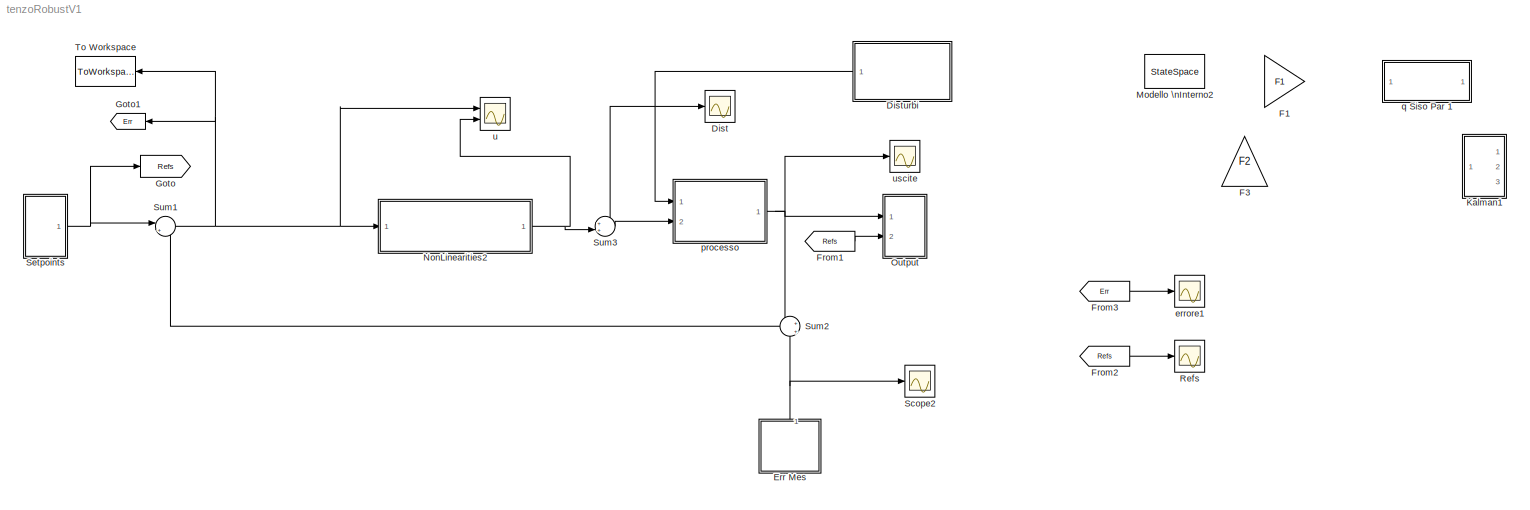
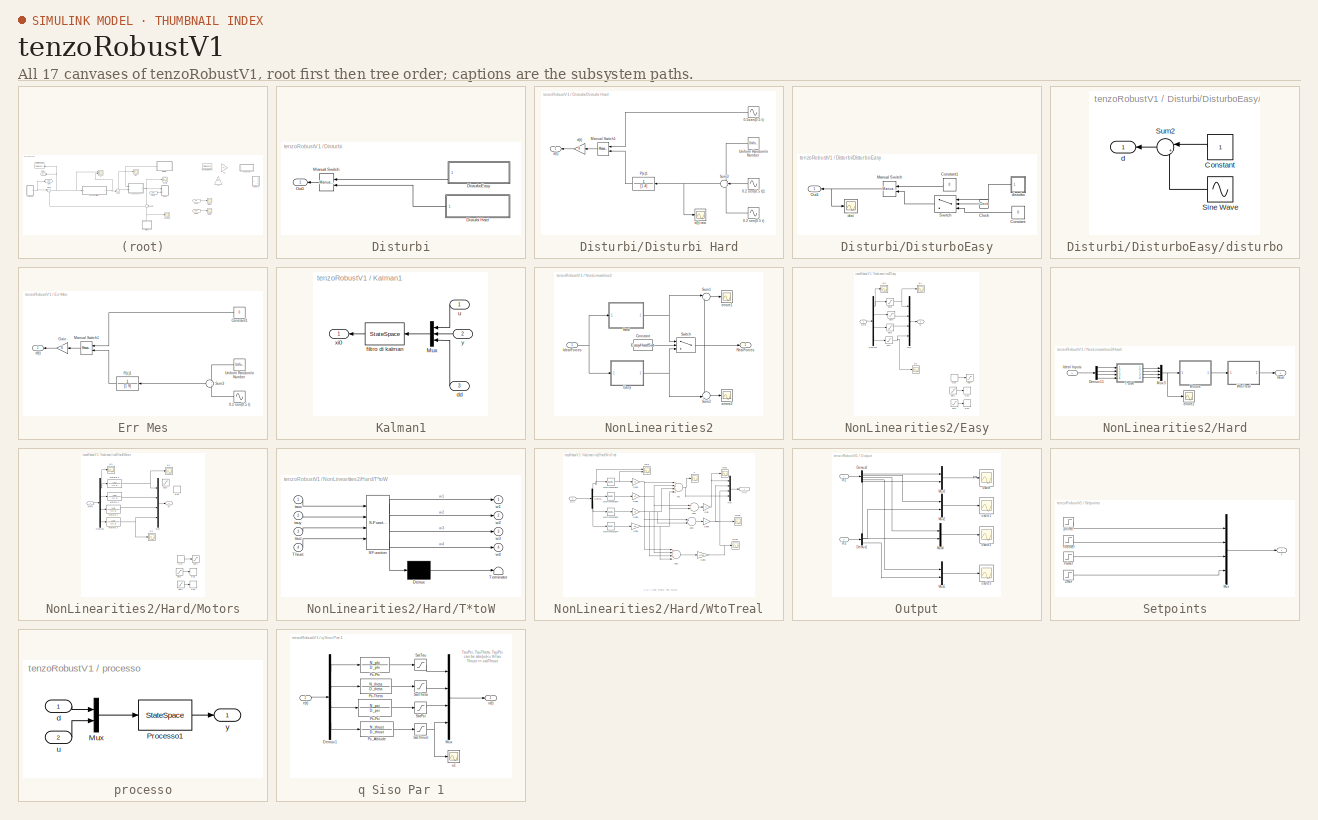
[diagram: thumbnail index - all 17 canvases of the model, root first then tree order]
MODEL tenzoRobustV1
KIND model
BLOCK [Scope] Dist
  DataFormat = StructureWithTime
  Floating = off
  LimitDataPoints = off
  NumInputPorts = 1
  Ports = [1]
  SID = 723
  SampleTime = 0
  SaveName = ScopeData22
  ShowLegends = off
  TimeRange = 15
  YMax = 0.09
  YMin = -0.1
  ZoomMode = yonly
BLOCK [SubSystem] Disturbi
  FunctionWithSeparateData = off
  MaskHideContents = off
  MinAlgLoopOccurrences = off
  Opaque = off
  Ports = [0, 1]
  PropExecContextOutsideSubsystem = off
  RTWSystemCode = Auto
  RequestExecContextInheritance = off
  SID = 721
BLOCK [SubSystem] Disturbi/Disturbi Hard
  FunctionWithSeparateData = off
  MaskHideContents = off
  MinAlgLoopOccurrences = off
  Opaque = off
  Ports = [0, 1]
  PropExecContextOutsideSubsystem = off
  RTWSystemCode = Auto
  RequestExecContextInheritance = off
  SID = 711
BLOCK [Outport] Disturbi/Disturbi Hard/  d(t)
  IconDisplay = Port number
  SID = 719
BLOCK [Sin] Disturbi/Disturbi Hard/0.2 sen(0.5 t)
  Amplitude = 0.2
  Frequency = 0.5
  Phase = 1
  Ports = [0, 1]
  SID = 712
  SampleTime = 0
BLOCK [Sin] Disturbi/Disturbi Hard/0.2 sen(0.5 t)1
  Amplitude = 0.1
  Frequency = 1.5
  Phase = 1.5
  Ports = [0, 1]
  SID = 739
  SampleTime = 0
BLOCK [Sin] Disturbi/Disturbi Hard/0.5sen(0.5 t)
  Amplitude = 0.5
  Frequency = 0.5
  Phase = 1
  Ports = [0, 1]
  SID = 713
  SampleTime = 0
BLOCK [Reference] Disturbi/Disturbi Hard/Manual Switch1  REF=simulink/Signal\nRouting/Manual Switch
  Ports = [2, 1]
  SID = 715
  SourceBlock = simulink/Signal\nRouting/Manual Switch
  SourceType = Manual Switch
  action = 0
  sw = 0
  varsize = off
BLOCK [TransferFcn] Disturbi/Disturbi Hard/P(s)1
  Denominator = [1 4]
  Numerator = 1
  SID = 716
BLOCK [Sum] Disturbi/Disturbi Hard/Sum3
  IconShape = round
  InputSameDT = off
  Inputs = +++
  OutDataTypeStr = Inherit: Inherit via internal rule
  Ports = [3, 1]
  SID = 717
  SaturateOnIntegerOverflow = off
BLOCK [UniformRandomNumber] Disturbi/Disturbi Hard/Uniform Random\nNumber
  Maximum = 0.5
  Minimum = -0.5
  SID = 718
  SampleTime = 0.1
BLOCK [Gain] Disturbi/Disturbi Hard/d(t)
  OutDataTypeStr = Inherit: Inherit via internal rule
  ParamDataTypeStr = Inherit: Inherit via internal rule
  SID = 714
  SaturateOnIntegerOverflow = off
BLOCK [Scope] Disturbi/Disturbi Hard/d(t) raw
  DataFormat = StructureWithTime
  Floating = off
  LimitDataPoints = off
  NumInputPorts = 1
  Ports = [1]
  SID = 740
  SampleTime = 0
  SaveName = ScopeData24
  ShowLegends = off
  TimeRange = 15
  YMax = 0.05
  YMin = -0.65
  ZoomMode = yonly
BLOCK [SubSystem] Disturbi/DisturboEasy
  FunctionWithSeparateData = off
  MaskHideContents = off
  MinAlgLoopOccurrences = off
  Opaque = off
  Ports = [0, 1]
  PropExecContextOutsideSubsystem = off
  RTWSystemCode = Auto
  RequestExecContextInheritance = off
  SID = 709
BLOCK [Clock] Disturbi/DisturboEasy/Clock
  SID = 104
BLOCK [Constant] Disturbi/DisturboEasy/Constant
  SID = 106
  Value = 0
BLOCK [Constant] Disturbi/DisturboEasy/Constant1
  SID = 148
  Value = 0
BLOCK [Reference] Disturbi/DisturboEasy/Manual Switch  REF=simulink/Signal\nRouting/Manual Switch
  Ports = [2, 1]
  SID = 149
  SourceBlock = simulink/Signal\nRouting/Manual Switch
  SourceType = Manual Switch
  action = 0
  sw = 1
  varsize = off
BLOCK [Outport] Disturbi/DisturboEasy/Out1
  IconDisplay = Port number
  SID = 710
BLOCK [Switch] Disturbi/DisturboEasy/Switch
  InputSameDT = off
  SID = 103
  SaturateOnIntegerOverflow = off
  Threshold = 5
BLOCK [Scope] Disturbi/DisturboEasy/dist
  DataFormat = StructureWithTime
  Floating = off
  LimitDataPoints = off
  NumInputPorts = 1
  Ports = [1]
  SID = 54
  SampleTime = 0
  SaveName = ScopeData5
  ShowLegends = off
BLOCK [SubSystem] Disturbi/DisturboEasy/disturbo
  FunctionWithSeparateData = off
  MaskHideContents = off
  MinAlgLoopOccurrences = off
  Opaque = off
  Ports = [0, 1]
  PropExecContextOutsideSubsystem = off
  RTWSystemCode = Auto
  RequestExecContextInheritance = off
  SID = 50
BLOCK [Constant] Disturbi/DisturboEasy/disturbo/Constant
  SID = 47
BLOCK [Sin] Disturbi/DisturboEasy/disturbo/Sine Wave
  Amplitude = 0.5
  Frequency = omega
  Ports = [0, 1]
  SID = 48
  SampleTime = 0
BLOCK [Sum] Disturbi/DisturboEasy/disturbo/Sum2
  IconShape = round
  InputSameDT = off
  Inputs = |++
  OutDataTypeStr = Inherit: Inherit via internal rule
  Ports = [2, 1]
  SID = 49
  SaturateOnIntegerOverflow = off
BLOCK [Outport] Disturbi/DisturboEasy/disturbo/d
  IconDisplay = Port number
  SID = 51
BLOCK [Reference] Disturbi/Manual Switch  REF=simulink/Signal\nRouting/Manual Switch
  Ports = [2, 1]
  SID = 720
  SourceBlock = simulink/Signal\nRouting/Manual Switch
  SourceType = Manual Switch
  action = 0
  sw = 1
  varsize = off
BLOCK [Outport] Disturbi/Out1
  IconDisplay = Port number
  SID = 722
BLOCK [SubSystem] Err Mes
  FunctionWithSeparateData = off
  MaskHideContents = off
  MinAlgLoopOccurrences = off
  Opaque = off
  Ports = [0, 1]
  PropExecContextOutsideSubsystem = off
  RTWSystemCode = Auto
  RequestExecContextInheritance = off
  SID = 685
BLOCK [Outport] Err Mes/  d(t)
  IconDisplay = Port number
  SID = 693
BLOCK [Sin] Err Mes/0.2 sen(0.5 t)
  Amplitude = 0.02
  Frequency = 50
  Phase = 1
  Ports = [0, 1]
  SID = 687
  SampleTime = 0
BLOCK [Constant] Err Mes/Constant1
  SID = 743
  Value = 0
BLOCK [Gain] Err Mes/Gain
  OutDataTypeStr = Inherit: Inherit via internal rule
  ParamDataTypeStr = Inherit: Inherit via internal rule
  SID = 688
  SaturateOnIntegerOverflow = off
BLOCK [Reference] Err Mes/Manual Switch1  REF=simulink/Signal\nRouting/Manual Switch
  Ports = [2, 1]
  SID = 689
  SourceBlock = simulink/Signal\nRouting/Manual Switch
  SourceType = Manual Switch
  action = 0
  sw = 1
  varsize = off
BLOCK [TransferFcn] Err Mes/P(s)1
  Denominator = [1 9]
  Numerator = 1
  SID = 690
BLOCK [Sum] Err Mes/Sum3
  IconShape = round
  InputSameDT = off
  OutDataTypeStr = Inherit: Inherit via internal rule
  Ports = [2, 1]
  SID = 691
  SaturateOnIntegerOverflow = off
BLOCK [UniformRandomNumber] Err Mes/Uniform Random\nNumber
  Maximum = 0.05
  Minimum = -0.05
  SID = 692
  SampleTime = 0.1
BLOCK [Gain] F1
  Gain = F1
  Multiplication = Matrix(K*u) (u vector)
  OutDataTypeStr = Inherit: Inherit via internal rule
  ParamDataTypeStr = Inherit: Inherit via internal rule
  SID = 191
  SaturateOnIntegerOverflow = off
BLOCK [Gain] F3
  Gain = F2
  Multiplication = Matrix(K*u) (u vector)
  OutDataTypeStr = Inherit: Inherit via internal rule
  ParamDataTypeStr = Inherit: Inherit via internal rule
  SID = 134
  SaturateOnIntegerOverflow = off
BLOCK [From] From1
  GotoTag = Refs
  SID = 69
BLOCK [From] From2
  GotoTag = Refs
  SID = 84
BLOCK [From] From3
  GotoTag = Err
  SID = 85
BLOCK [Goto] Goto
  GotoTag = Refs
  SID = 68
BLOCK [Goto] Goto1
  GotoTag = Err
  SID = 87
BLOCK [SubSystem] Kalman1
  FunctionWithSeparateData = off
  MaskHideContents = off
  MinAlgLoopOccurrences = off
  Opaque = off
  Ports = [3, 1]
  PropExecContextOutsideSubsystem = off
  RTWSystemCode = Auto
  RequestExecContextInheritance = off
  SID = 138
BLOCK [Mux] Kalman1/Mux
  DisplayOption = bar
  Inputs = [4 4 1]
  Ports = [3, 1]
  SID = 142
BLOCK [Inport] Kalman1/dd
  IconDisplay = Port number
  Port = 3
  SID = 141
BLOCK [StateSpace] Kalman1/filtro di kalman
  A = Aoss
  B = Boss
  C = Coss
  D = Doss
  SID = 143
BLOCK [Inport] Kalman1/u
  IconDisplay = Port number
  SID = 139
BLOCK [Outport] Kalman1/xi0
  IconDisplay = Port number
  SID = 144
BLOCK [Inport] Kalman1/y
  IconDisplay = Port number
  Port = 2
  SID = 140
BLOCK [StateSpace] Modello \nInterno2
  A = AMI
  B = BMI
  C = CMI
  D = DMI
  SID = 192
BLOCK [SubSystem] NonLinearities2
  FunctionWithSeparateData = off
  MaskHideContents = off
  MinAlgLoopOccurrences = off
  Opaque = off
  Ports = [1, 1]
  PropExecContextOutsideSubsystem = off
  RTWSystemCode = Auto
  RequestExecContextInheritance = off
  SID = 604
BLOCK [Constant] NonLinearities2/Constant
  SID = 606
  Value = EasyHardSat
BLOCK [SubSystem] NonLinearities2/Easy
  FunctionWithSeparateData = off
  MaskHideContents = off
  MinAlgLoopOccurrences = off
  Opaque = off
  Ports = [1, 1]
  PropExecContextOutsideSubsystem = off
  RTWSystemCode = Auto
  RequestExecContextInheritance = off
  SID = 607
BLOCK [DeadZone] NonLinearities2/Easy/DZ2
  LowerValue = 0
  SID = 609
  UpperValue = deadMotorsZone
BLOCK [DeadZone] NonLinearities2/Easy/DZ3
  LowerValue = 0
  SID = 610
  UpperValue = deadMotorsZone
BLOCK [DeadZone] NonLinearities2/Easy/DZ4
  LowerValue = 0
  SID = 611
  UpperValue = deadMotorsZone
BLOCK [Demux] NonLinearities2/Easy/Demux5
  DisplayOption = bar
  Ports = [1, 4]
  SID = 612
BLOCK [Mux] NonLinearities2/Easy/Mux
  DisplayOption = bar
  Ports = [4, 1]
  SID = 613
BLOCK [Saturate] NonLinearities2/Easy/Sat1
  InputPortMap = u0
  LowerLimit = 0
  Ports = [1, 1]
  SID = 614
  UpperLimit = satMaxRPM
BLOCK [Saturate] NonLinearities2/Easy/Sat2
  InputPortMap = u0
  LowerLimit = 0
  Ports = [1, 1]
  SID = 615
  UpperLimit = satMaxRPM
BLOCK [Saturate] NonLinearities2/Easy/Sat3
  InputPortMap = u0
  LowerLimit = satMenoW
  Ports = [1, 1]
  SID = 616
  UpperLimit = satW
BLOCK [Saturate] NonLinearities2/Easy/Sat4
  InputPortMap = u0
  LowerLimit = 0
  Ports = [1, 1]
  SID = 617
  UpperLimit = satMaxRPM
BLOCK [Saturate] NonLinearities2/Easy/Sat5
  InputPortMap = u0
  LowerLimit = satMenoW
  Ports = [1, 1]
  SID = 744
  UpperLimit = satW
BLOCK [Saturate] NonLinearities2/Easy/Sat6
  InputPortMap = u0
  LowerLimit = satMenoW
  Ports = [1, 1]
  SID = 745
  UpperLimit = satW
BLOCK [Saturate] NonLinearities2/Easy/Sat7
  InputPortMap = u0
  LowerLimit = satMenoW
  Ports = [1, 1]
  SID = 746
  UpperLimit = satW
BLOCK [Outport] NonLinearities2/Easy/w
  IconDisplay = Port number
  SID = 624
BLOCK [Scope] NonLinearities2/Easy/w1
  DataFormat = StructureWithTime
  Floating = off
  NumInputPorts = 1
  Ports = [1]
  SID = 621
  SampleTime = 0
  SaveName = ScopeData15
  ShowLegends = off
  YMax = 2.25e+42
  YMin = -1.5e+42
BLOCK [Scope] NonLinearities2/Easy/w2
  DataFormat = StructureWithTime
  Floating = off
  NumInputPorts = 1
  Ports = [1]
  SID = 622
  SampleTime = 0
  SaveName = ScopeData10
  ShowLegends = off
  YMax = 5e+50
  YMin = -8e+50
BLOCK [Scope] NonLinearities2/Easy/w3
  DataFormat = StructureWithTime
  Floating = off
  NumInputPorts = 1
  Ports = [1]
  SID = 623
  SampleTime = 0
  SaveName = ScopeData16
  ShowLegends = off
  YMax = 999.705
  YMin = 904.495
BLOCK [Inport] NonLinearities2/Easy/wRif
  IconDisplay = Port number
  SID = 608
BLOCK [SubSystem] NonLinearities2/Hard
  FunctionWithSeparateData = off
  MaskHideContents = off
  MinAlgLoopOccurrences = off
  Opaque = off
  Ports = [1, 1]
  PropExecContextOutsideSubsystem = off
  RTWSystemCode = Auto
  RequestExecContextInheritance = off
  SID = 625
BLOCK [Demux] NonLinearities2/Hard/Demux11
  DisplayOption = bar
  Ports = [1, 4]
  SID = 627
BLOCK [Inport] NonLinearities2/Hard/Ideal Inputs
  IconDisplay = Port number
  SID = 626
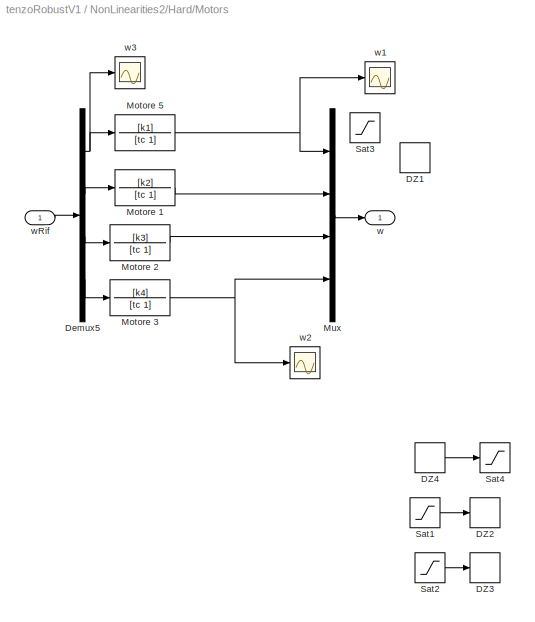
BLOCK [SubSystem] NonLinearities2/Hard/Motors
  FunctionWithSeparateData = off
  MaskHideContents = off
  MinAlgLoopOccurrences = off
  Opaque = off
  Ports = [1, 1]
  PropExecContextOutsideSubsystem = off
  RTWSystemCode = Auto
  RequestExecContextInheritance = off
  SID = 628
BLOCK [DeadZone] NonLinearities2/Hard/Motors/DZ1
  LowerValue = 0
  SID = 630
  UpperValue = deadMotorsZone
BLOCK [DeadZone] NonLinearities2/Hard/Motors/DZ2
  LowerValue = 0
  SID = 631
  UpperValue = deadMotorsZone
BLOCK [DeadZone] NonLinearities2/Hard/Motors/DZ3
  LowerValue = 0
  SID = 632
  UpperValue = deadMotorsZone
BLOCK [DeadZone] NonLinearities2/Hard/Motors/DZ4
  LowerValue = 0
  SID = 633
  UpperValue = deadMotorsZone
BLOCK [Demux] NonLinearities2/Hard/Motors/Demux5
  DisplayOption = bar
  Ports = [1, 4]
  SID = 634
BLOCK [TransferFcn] NonLinearities2/Hard/Motors/Motore 1
  Denominator = [tc 1]
  Numerator = [k2]
  SID = 635
BLOCK [TransferFcn] NonLinearities2/Hard/Motors/Motore 2
  Denominator = [tc 1]
  Numerator = [k3]
  SID = 636
BLOCK [TransferFcn] NonLinearities2/Hard/Motors/Motore 3
  Denominator = [tc 1]
  Numerator = [k4]
  SID = 637
BLOCK [TransferFcn] NonLinearities2/Hard/Motors/Motore 5
  Denominator = [tc 1]
  Numerator = [k1]
  SID = 638
BLOCK [Mux] NonLinearities2/Hard/Motors/Mux
  DisplayOption = bar
  Ports = [4, 1]
  SID = 639
BLOCK [Saturate] NonLinearities2/Hard/Motors/Sat1
  InputPortMap = u0
  LowerLimit = 0
  Ports = [1, 1]
  SID = 640
  UpperLimit = satMaxRPM
BLOCK [Saturate] NonLinearities2/Hard/Motors/Sat2
  InputPortMap = u0
  LowerLimit = 0
  Ports = [1, 1]
  SID = 641
  UpperLimit = satMaxRPM
BLOCK [Saturate] NonLinearities2/Hard/Motors/Sat3
  InputPortMap = u0
  LowerLimit = 0
  Ports = [1, 1]
  SID = 642
  UpperLimit = satMaxRPM
BLOCK [Saturate] NonLinearities2/Hard/Motors/Sat4
  InputPortMap = u0
  LowerLimit = 0
  Ports = [1, 1]
  SID = 643
  UpperLimit = satMaxRPM
BLOCK [Outport] NonLinearities2/Hard/Motors/w
  IconDisplay = Port number
  SID = 647
BLOCK [Scope] NonLinearities2/Hard/Motors/w1
  DataFormat = StructureWithTime
  Floating = off
  NumInputPorts = 1
  Ports = [1]
  SID = 644
  SampleTime = 0
  SaveName = ScopeData15
  ShowLegends = off
  YMax = 2.25e+42
  YMin = -1.5e+42
BLOCK [Scope] NonLinearities2/Hard/Motors/w2
  DataFormat = StructureWithTime
  Floating = off
  NumInputPorts = 1
  Ports = [1]
  SID = 645
  SampleTime = 0
  SaveName = ScopeData10
  ShowLegends = off
  YMax = 5e+50
  YMin = -8e+50
BLOCK [Scope] NonLinearities2/Hard/Motors/w3
  DataFormat = StructureWithTime
  Floating = off
  NumInputPorts = 1
  Ports = [1]
  SID = 646
  SampleTime = 0
  SaveName = ScopeData16
  ShowLegends = off
  YMax = 999.705
  YMin = 904.495
BLOCK [Inport] NonLinearities2/Hard/Motors/wRif
  IconDisplay = Port number
  SID = 629
BLOCK [Mux] NonLinearities2/Hard/Mux3
  DisplayOption = bar
  Ports = [4, 1]
  SID = 648
BLOCK [Outport] NonLinearities2/Hard/Real
  IconDisplay = Port number
  SID = 676
BLOCK [SubSystem] NonLinearities2/Hard/T*toW
  ErrorFcn = Stateflow.Translate.translate
  FunctionWithSeparateData = off
  MaskDisplay = bgColor = Simulink.Root.ColorString2Rgb(get_param(gcbh, 'BackgroundColor')); image(imread('private/eml_membrane_16.png','png','BackgroundColor',bgColor(1:3)),'center'); disp([10 10 'mixer']);
  MaskHideContents = off
  MaskIconFrame = on
  MaskIconOpaque = on
  MaskIconRotate = none
  MaskIconUnits = normalized
  MaskPortRotate = default
  MaskSelfModifiable = on
  MinAlgLoopOccurrences = off
  Opaque = off
  PermitHierarchicalResolution = ExplicitOnly
  Ports = [4, 4]
  PropExecContextOutsideSubsystem = off
  RTWSystemCode = Auto
  RequestExecContextInheritance = off
  SFBlockType = MATLAB Function
  SID = 649
  TreatAsAtomicUnit = on
BLOCK [Demux] NonLinearities2/Hard/T*toW/ Demux 
  Outputs = 1
  Ports = [1, 1]
  SID = 649::30
BLOCK [S-Function] NonLinearities2/Hard/T*toW/ SFunction 
  EnableBusSupport = on
  FunctionName = sf_sfun
  PortCounts = [4 5]
  Ports = [4, 5]
  SID = 649::29
  Tag = Stateflow S-Function tenzoRobustV1 2
BLOCK [Terminator] NonLinearities2/Hard/T*toW/ Terminator 
  SID = 649::31
BLOCK [Inport] NonLinearities2/Hard/T*toW/Thrust
  IconDisplay = Port number
  Port = 4
  SID = 649::1
BLOCK [Inport] NonLinearities2/Hard/T*toW/taux
  IconDisplay = Port number
  SID = 649::23
BLOCK [Inport] NonLinearities2/Hard/T*toW/tauy
  IconDisplay = Port number
  Port = 2
  SID = 649::24
BLOCK [Inport] NonLinearities2/Hard/T*toW/tauz
  IconDisplay = Port number
  Port = 3
  SID = 649::25
BLOCK [Outport] NonLinearities2/Hard/T*toW/w1
  IconDisplay = Port number
  SID = 649::5
BLOCK [Outport] NonLinearities2/Hard/T*toW/w2
  IconDisplay = Port number
  Port = 2
  SID = 649::26
BLOCK [Outport] NonLinearities2/Hard/T*toW/w3
  IconDisplay = Port number
  Port = 3
  SID = 649::27
BLOCK [Outport] NonLinearities2/Hard/T*toW/w4
  IconDisplay = Port number
  Port = 4
  SID = 649::28
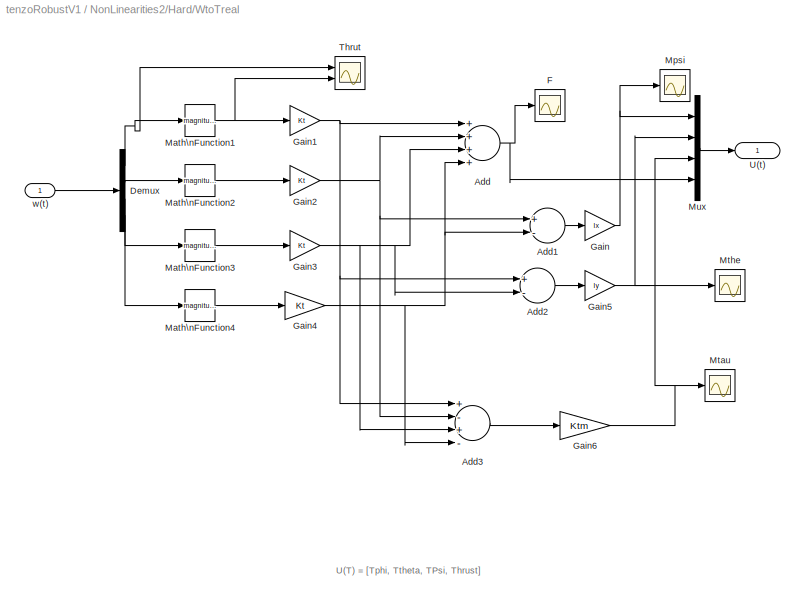
BLOCK [SubSystem] NonLinearities2/Hard/WtoTreal
  FunctionWithSeparateData = off
  MaskHideContents = off
  MinAlgLoopOccurrences = off
  Opaque = off
  Ports = [1, 1]
  PropExecContextOutsideSubsystem = off
  RTWSystemCode = Auto
  RequestExecContextInheritance = off
  SID = 650
BLOCK [Sum] NonLinearities2/Hard/WtoTreal/Add
  InputSameDT = off
  Inputs = ++++
  OutDataTypeStr = Inherit: Inherit via internal rule
  Ports = [4, 1]
  SID = 652
  SaturateOnIntegerOverflow = off
BLOCK [Sum] NonLinearities2/Hard/WtoTreal/Add1
  InputSameDT = off
  Inputs = +-
  OutDataTypeStr = Inherit: Inherit via internal rule
  Ports = [2, 1]
  SID = 653
  SaturateOnIntegerOverflow = off
BLOCK [Sum] NonLinearities2/Hard/WtoTreal/Add2
  InputSameDT = off
  Inputs = +-
  OutDataTypeStr = Inherit: Inherit via internal rule
  Ports = [2, 1]
  SID = 654
  SaturateOnIntegerOverflow = off
BLOCK [Sum] NonLinearities2/Hard/WtoTreal/Add3
  InputSameDT = off
  Inputs = +-+-
  OutDataTypeStr = Inherit: Inherit via internal rule
  Ports = [4, 1]
  SID = 655
  SaturateOnIntegerOverflow = off
BLOCK [Demux] NonLinearities2/Hard/WtoTreal/Demux
  DisplayOption = bar
  Ports = [1, 4]
  SID = 656
BLOCK [Scope] NonLinearities2/Hard/WtoTreal/F
  DataFormat = StructureWithTime
  Floating = off
  NumInputPorts = 1
  Ports = [1]
  SID = 657
  SampleTime = 0
  SaveName = ScopeData17
  ShowLegends = off
  ZoomMode = yonly
BLOCK [Gain] NonLinearities2/Hard/WtoTreal/Gain
  Gain = lx
  OutDataTypeStr = Inherit: Inherit via internal rule
  ParamDataTypeStr = Inherit: Inherit via internal rule
  SID = 658
  SaturateOnIntegerOverflow = off
BLOCK [Gain] NonLinearities2/Hard/WtoTreal/Gain1
  Gain = Kt
  OutDataTypeStr = Inherit: Inherit via internal rule
  ParamDataTypeStr = Inherit: Inherit via internal rule
  SID = 659
  SaturateOnIntegerOverflow = off
BLOCK [Gain] NonLinearities2/Hard/WtoTreal/Gain2
  Gain = Kt
  OutDataTypeStr = Inherit: Inherit via internal rule
  ParamDataTypeStr = Inherit: Inherit via internal rule
  SID = 660
  SaturateOnIntegerOverflow = off
BLOCK [Gain] NonLinearities2/Hard/WtoTreal/Gain3
  Gain = Kt
  OutDataTypeStr = Inherit: Inherit via internal rule
  ParamDataTypeStr = Inherit: Inherit via internal rule
  SID = 661
  SaturateOnIntegerOverflow = off
BLOCK [Gain] NonLinearities2/Hard/WtoTreal/Gain4
  Gain = Kt
  OutDataTypeStr = Inherit: Inherit via internal rule
  ParamDataTypeStr = Inherit: Inherit via internal rule
  SID = 662
  SaturateOnIntegerOverflow = off
BLOCK [Gain] NonLinearities2/Hard/WtoTreal/Gain5
  Gain = ly
  OutDataTypeStr = Inherit: Inherit via internal rule
  ParamDataTypeStr = Inherit: Inherit via internal rule
  SID = 663
  SaturateOnIntegerOverflow = off
BLOCK [Gain] NonLinearities2/Hard/WtoTreal/Gain6
  Gain = Ktm
  OutDataTypeStr = Inherit: Inherit via internal rule
  ParamDataTypeStr = Inherit: Inherit via internal rule
  SID = 664
  SaturateOnIntegerOverflow = off
BLOCK [Math] NonLinearities2/Hard/WtoTreal/Math\nFunction1
  Operator = magnitude^2
  Ports = [1, 1]
  SID = 665
BLOCK [Math] NonLinearities2/Hard/WtoTreal/Math\nFunction2
  Operator = magnitude^2
  Ports = [1, 1]
  SID = 666
BLOCK [Math] NonLinearities2/Hard/WtoTreal/Math\nFunction3
  Operator = magnitude^2
  Ports = [1, 1]
  SID = 667
BLOCK [Math] NonLinearities2/Hard/WtoTreal/Math\nFunction4
  Operator = magnitude^2
  Ports = [1, 1]
  SID = 668
BLOCK [Scope] NonLinearities2/Hard/WtoTreal/Mpsi
  DataFormat = StructureWithTime
  Floating = off
  NumInputPorts = 1
  Ports = [1]
  SID = 669
  SampleTime = 0
  SaveName = ScopeData14
  ShowLegends = off
  ZoomMode = yonly
BLOCK [Scope] NonLinearities2/Hard/WtoTreal/Mtau
  DataFormat = StructureWithTime
  Floating = off
  NumInputPorts = 1
  Ports = [1]
  SID = 670
  SampleTime = 0
  SaveName = ScopeData11
  ShowLegends = off
  ZoomMode = yonly
BLOCK [Scope] NonLinearities2/Hard/WtoTreal/Mthe
  DataFormat = StructureWithTime
  Floating = off
  NumInputPorts = 1
  Ports = [1]
  SID = 671
  SampleTime = 0
  SaveName = ScopeData13
  ShowLegends = off
BLOCK [Mux] NonLinearities2/Hard/WtoTreal/Mux
  DisplayOption = bar
  Ports = [4, 1]
  SID = 672
BLOCK [Scope] NonLinearities2/Hard/WtoTreal/Thrut
  DataFormat = StructureWithTime
  Floating = off
  NumInputPorts = 2
  Ports = [2]
  SID = 673
  SampleTime = 0
  SaveName = ScopeData19
  ShowLegends = off
  YMax = 5~5
  YMin = -5~-5
  ZoomMode = yonly
BLOCK [Outport] NonLinearities2/Hard/WtoTreal/U(t)
  IconDisplay = Port number
  SID = 674
BLOCK [Inport] NonLinearities2/Hard/WtoTreal/w(t)
  IconDisplay = Port number
  SID = 651
BLOCK [Scope] NonLinearities2/Hard/errore2
  DataFormat = StructureWithTime
  Floating = off
  LimitDataPoints = off
  NumInputPorts = 1
  Ports = [1]
  SID = 737
  SampleTime = 0
  SaveName = ScopeData23
  ShowLegends = off
BLOCK [Inport] NonLinearities2/IdealForces
  IconDisplay = Port number
  SID = 605
BLOCK [Outport] NonLinearities2/RealForces
  IconDisplay = Port number
  SID = 683
BLOCK [Sum] NonLinearities2/Sum1
  IconShape = round
  InputSameDT = off
  Inputs = |+-
  OutDataTypeStr = Inherit: Inherit via internal rule
  Ports = [2, 1]
  SID = 678
  SaturateOnIntegerOverflow = off
BLOCK [Sum] NonLinearities2/Sum2
  IconShape = round
  InputSameDT = off
  Inputs = -+|
  OutDataTypeStr = Inherit: Inherit via internal rule
  Ports = [2, 1]
  SID = 679
  SaturateOnIntegerOverflow = off
BLOCK [Switch] NonLinearities2/Switch
  Criteria = u2 > Threshold
  InputSameDT = off
  SID = 680
  SaturateOnIntegerOverflow = off
  Threshold = 0.5
BLOCK [Scope] NonLinearities2/errore1
  DataFormat = StructureWithTime
  Floating = off
  LimitDataPoints = off
  NumInputPorts = 1
  Ports = [1]
  SID = 681
  SampleTime = 0
  SaveName = ScopeData18
  ShowLegends = off
BLOCK [Scope] NonLinearities2/errore2
  DataFormat = StructureWithTime
  Floating = off
  LimitDataPoints = off
  NumInputPorts = 1
  Ports = [1]
  SID = 682
  SampleTime = 0
  SaveName = ScopeData20
  ShowLegends = off
BLOCK [SubSystem] Output
  FunctionWithSeparateData = off
  MaskHideContents = off
  MinAlgLoopOccurrences = off
  Opaque = off
  Ports = [2]
  PropExecContextOutsideSubsystem = off
  RTWSystemCode = Auto
  RequestExecContextInheritance = off
  SID = 71
BLOCK [Demux] Output/Demux1
  DisplayOption = bar
  Ports = [1, 4]
  SID = 74
BLOCK [Demux] Output/Demux2
  DisplayOption = bar
  Ports = [1, 4]
  SID = 76
BLOCK [Inport] Output/In1
  IconDisplay = Port number
  SID = 72
BLOCK [Inport] Output/In2
  IconDisplay = Port number
  Port = 2
  SID = 73
BLOCK [Mux] Output/Mux2
  DisplayOption = bar
  Inputs = 2
  Ports = [2, 1]
  SID = 77
BLOCK [Mux] Output/Mux3
  DisplayOption = bar
  Inputs = 2
  Ports = [2, 1]
  SID = 64
BLOCK [Mux] Output/Mux4
  DisplayOption = bar
  Inputs = 2
  Ports = [2, 1]
  SID = 79
BLOCK [Mux] Output/Mux5
  DisplayOption = bar
  Inputs = 2
  Ports = [2, 1]
  SID = 81
BLOCK [Scope] Output/uscite
  DataFormat = StructureWithTime
  Floating = off
  LimitDataPoints = off
  NumInputPorts = 1
  Ports = [1]
  SID = 25
  SampleTime = 0
  ShowLegends = off
  TickLabels = on
  TimeRange = 15
  YMax = 7
  YMin = -3.5
  ZoomMode = xonly
BLOCK [Scope] Output/uscite1
  DataFormat = StructureWithTime
  Floating = off
  LimitDataPoints = off
  NumInputPorts = 1
  Ports = [1]
  SID = 78
  SampleTime = 0
  SaveName = ScopeData4
  ShowLegends = off
  TickLabels = on
  TimeRange = 30
  YMax = 4.25
  YMin = 0.75
  ZoomMode = xonly
BLOCK [Scope] Output/uscite2
  DataFormat = StructureWithTime
  Floating = off
  LimitDataPoints = off
  NumInputPorts = 1
  Ports = [1]
  SID = 80
  SampleTime = 0
  SaveName = ScopeData6
  ShowLegends = off
  TickLabels = on
  YMax = 4.25
  YMin = 0.75
  ZoomMode = xonly
BLOCK [Scope] Output/uscite3
  DataFormat = StructureWithTime
  Floating = off
  LimitDataPoints = off
  NumInputPorts = 1
  Ports = [1]
  SID = 82
  SampleTime = 0
  SaveName = ScopeData7
  ShowLegends = off
  TickLabels = on
  YMax = 4.25
  YMin = 0.75
  ZoomMode = xonly
BLOCK [Scope] Refs
  DataFormat = StructureWithTime
  Floating = off
  LimitDataPoints = off
  NumInputPorts = 1
  Ports = [1]
  SID = 83
  SampleTime = 0
  SaveName = ScopeData1
  ShowLegends = off
BLOCK [Scope] Scope2
  DataFormat = StructureWithTime
  Floating = off
  LimitDataPoints = off
  NumInputPorts = 1
  Ports = [1]
  SID = 694
  SampleTime = 0
  SaveName = ScopeData21
  ShowLegends = off
  YMax = 0.004
  YMin = -0.004
BLOCK [SubSystem] Setpoints
  FunctionWithSeparateData = off
  MaskHideContents = off
  MinAlgLoopOccurrences = off
  Opaque = off
  Ports = [0, 1]
  PropExecContextOutsideSubsystem = off
  RTWSystemCode = Auto
  RequestExecContextInheritance = off
  SID = 11
BLOCK [Mux] Setpoints/Mux
  DisplayOption = bar
  Inputs = [1 1 1 1]
  Ports = [4, 1]
  SID = 10
BLOCK [Step] Setpoints/PsiRef
  After = 2.5
  SID = 152
  SampleTime = 0
  Time = 0.8
BLOCK [Step] Setpoints/ThetRef
  After = 2
  SID = 151
  SampleTime = 0
  Time = 0.5
BLOCK [Step] Setpoints/ZRef
  After = 2.5
  SID = 146
  SampleTime = 0
  Time = 3
BLOCK [Step] Setpoints/phiRef
  After = 1.5
  SID = 150
  SampleTime = 0
BLOCK [Outport] Setpoints/r
  IconDisplay = Port number
  SID = 12
BLOCK [Sum] Sum1
  IconShape = round
  InputSameDT = off
  Inputs = |+-
  OutDataTypeStr = Inherit: Inherit via internal rule
  Ports = [2, 1]
  SID = 24
  SaturateOnIntegerOverflow = off
BLOCK [Sum] Sum2
  IconShape = round
  InputSameDT = off
  Inputs = +|+
  OutDataTypeStr = Inherit: Inherit via internal rule
  Ports = [2, 1]
  SID = 695
  SaturateOnIntegerOverflow = off
BLOCK [Sum] Sum3
  IconShape = round
  InputSameDT = off
  Inputs = ++|
  OutDataTypeStr = Inherit: Inherit via internal rule
  Ports = [2, 1]
  SID = 741
  SaturateOnIntegerOverflow = off
BLOCK [ToWorkspace] To Workspace
  MaxDataPoints = inf
  Ports = [1]
  SID = 59
  SampleTime = -1
  SaveFormat = Structure
  VariableName = simout
BLOCK [Scope] errore1
  DataFormat = StructureWithTime
  Floating = off
  LimitDataPoints = off
  NumInputPorts = 1
  Ports = [1]
  SID = 86
  SampleTime = 0
  SaveName = ScopeData8
  ShowLegends = off
BLOCK [SubSystem] processo
  FunctionWithSeparateData = off
  MaskHideContents = off
  MinAlgLoopOccurrences = off
  Opaque = off
  Ports = [2, 1]
  PropExecContextOutsideSubsystem = off
  RTWSystemCode = Auto
  RequestExecContextInheritance = off
  SID = 43
BLOCK [Mux] processo/Mux
  DisplayOption = bar
  Inputs = [1 4]
  Ports = [2, 1]
  SID = 41
BLOCK [StateSpace] processo/Processo1
  A = AMin
  B = Bmod
  C = ClocalMin
  D = Dmod
  SID = 42
BLOCK [Inport] processo/d
  IconDisplay = Port number
  SID = 44
BLOCK [Inport] processo/u
  IconDisplay = Port number
  Port = 2
  SID = 46
BLOCK [Outport] processo/y
  IconDisplay = Port number
  SID = 45
BLOCK [SubSystem] q Siso Par 1
  FunctionWithSeparateData = off
  MaskHideContents = off
  MinAlgLoopOccurrences = off
  Opaque = off
  Ports = [1, 1]
  PropExecContextOutsideSubsystem = off
  RTWSystemCode = Auto
  RequestExecContextInheritance = off
  SID = 161
BLOCK [Demux] q Siso Par 1/Demux1
  DisplayOption = bar
  Ports = [1, 4]
  SID = 163
BLOCK [Mux] q Siso Par 1/Mux
  DisplayOption = bar
  Ports = [4, 1]
  SID = 164
BLOCK [TransferFcn] q Siso Par 1/Ps-Phi
  Denominator = D_phi
  Numerator = N_phi
  SID = 165
BLOCK [TransferFcn] q Siso Par 1/Ps-Psi
  Denominator = D_psi
  Numerator = N_psi
  SID = 166
BLOCK [TransferFcn] q Siso Par 1/Ps-Theta
  Denominator = D_theta
  Numerator = N_theta
  SID = 167
BLOCK [TransferFcn] q Siso Par 1/Ps_Altitude
  Denominator = D_thrust
  Numerator = N_thrust
  SID = 168
BLOCK [Saturate] q Siso Par 1/SatPsi
  InputPortMap = u0
  LowerLimit = -satTau
  Ports = [1, 1]
  SID = 169
  UpperLimit = satTau
BLOCK [Saturate] q Siso Par 1/SatTau
  InputPortMap = u0
  LowerLimit = -satTau
  Ports = [1, 1]
  SID = 170
  UpperLimit = satTau
BLOCK [Saturate] q Siso Par 1/SatTheta
  InputPortMap = u0
  LowerLimit = -satTau
  Ports = [1, 1]
  SID = 171
  UpperLimit = satTau
BLOCK [Saturate] q Siso Par 1/SatThrust
  InputPortMap = u0
  LowerLimit = -satNegThrust
  Ports = [1, 1]
  SID = 172
  UpperLimit = satThrust
BLOCK [Inport] q Siso Par 1/e(t)
  IconDisplay = Port number
  SID = 162
BLOCK [Outport] q Siso Par 1/u(t)
  IconDisplay = Port number
  SID = 174
BLOCK [Scope] q Siso Par 1/u1
  DataFormat = StructureWithTime
  Floating = off
  LimitDataPoints = off
  NumInputPorts = 1
  Ports = [1]
  SID = 173
  SampleTime = 0
  SaveName = ScopeData9
  ShowLegends = off
  ZoomMode = xonly
BLOCK [Scope] u
  DataFormat = StructureWithTime
  Floating = off
  LimitDataPoints = off
  NumInputPorts = 2
  Ports = [2]
  SID = 28
  SampleTime = 0
  SaveName = ScopeData3
  ShowLegends = off
  YMax = 5~5
  YMin = -5~-5
BLOCK [Scope] uscite
  DataFormat = StructureWithTime
  Floating = off
  LimitDataPoints = off
  NumInputPorts = 1
  Ports = [1]
  SID = 88
  SampleTime = 0
  SaveName = ScopeData2
  ShowLegends = off
  TimeRange = 15
  YMax = 2.6
  YMin = 1.3
  ZoomMode = yonly
ANNOTATION NonLinearities2/Hard/WtoTreal: U(T) = [Tphi, Ttheta, TPsi, Thrust]
ANNOTATION q Siso Par 1: TauPsi, TauTheta, TauPsi\n can be abs(ui)<= thTau\nThrust <= satThrust
LINE Disturbi/Disturbi Hard/0.2 sen(0.5 t)1:1 -> Disturbi/Disturbi Hard/Sum3:2
LINE Disturbi/Disturbi Hard/0.2 sen(0.5 t):1 -> Disturbi/Disturbi Hard/Sum3:3
LINE Disturbi/Disturbi Hard/0.5sen(0.5 t):1 -> Disturbi/Disturbi Hard/Manual Switch1:1
LINE Disturbi/Disturbi Hard/Manual Switch1:1 -> Disturbi/Disturbi Hard/d(t):1
LINE Disturbi/Disturbi Hard/P(s)1:1 -> Disturbi/Disturbi Hard/Manual Switch1:2
NET Disturbi/Disturbi Hard/Sum3:1 -> Disturbi/Disturbi Hard/P(s)1:1, Disturbi/Disturbi Hard/d(t) raw:1
LINE Disturbi/Disturbi Hard/Uniform Random\nNumber:1 -> Disturbi/Disturbi Hard/Sum3:1
LINE Disturbi/Disturbi Hard/d(t):1 -> Disturbi/Disturbi Hard/  d(t):1
LINE Disturbi/Disturbi Hard:1 -> Disturbi/Manual Switch:2
LINE Disturbi/DisturboEasy/Clock:1 -> Disturbi/DisturboEasy/Switch:2
LINE Disturbi/DisturboEasy/Constant1:1 -> Disturbi/DisturboEasy/Manual Switch:1
LINE Disturbi/DisturboEasy/Constant:1 -> Disturbi/DisturboEasy/Switch:3
NET Disturbi/DisturboEasy/Manual Switch:1 -> Disturbi/DisturboEasy/Out1:1, Disturbi/DisturboEasy/dist:1
LINE Disturbi/DisturboEasy/Switch:1 -> Disturbi/DisturboEasy/Manual Switch:2
LINE Disturbi/DisturboEasy/disturbo/Constant:1 -> Disturbi/DisturboEasy/disturbo/Sum2:1
LINE Disturbi/DisturboEasy/disturbo/Sine Wave:1 -> Disturbi/DisturboEasy/disturbo/Sum2:2
LINE Disturbi/DisturboEasy/disturbo/Sum2:1 -> Disturbi/DisturboEasy/disturbo/d:1
LINE Disturbi/DisturboEasy/disturbo:1 -> Disturbi/DisturboEasy/Switch:1
LINE Disturbi/DisturboEasy:1 -> Disturbi/Manual Switch:1
LINE Disturbi/Manual Switch:1 -> Disturbi/Out1:1
NET Disturbi:1 -> Dist:1, Sum3:1, processo:1
LINE Err Mes/0.2 sen(0.5 t):1 -> Err Mes/Sum3:2
LINE Err Mes/Constant1:1 -> Err Mes/Manual Switch1:1
LINE Err Mes/Gain:1 -> Err Mes/  d(t):1
LINE Err Mes/Manual Switch1:1 -> Err Mes/Gain:1
LINE Err Mes/P(s)1:1 -> Err Mes/Manual Switch1:2
LINE Err Mes/Sum3:1 -> Err Mes/P(s)1:1
LINE Err Mes/Uniform Random\nNumber:1 -> Err Mes/Sum3:1
NET Err Mes:1 -> Scope2:1, Sum2:2
LINE From1:1 -> Output:2
LINE From2:1 -> Refs:1
LINE From3:1 -> errore1:1
LINE Kalman1/Mux:1 -> Kalman1/filtro di kalman:1
LINE Kalman1/dd:1 -> Kalman1/Mux:3
LINE Kalman1/filtro di kalman:1 -> Kalman1/xi0:1
LINE Kalman1/u:1 -> Kalman1/Mux:1
LINE Kalman1/y:1 -> Kalman1/Mux:2
LINE NonLinearities2/Constant:1 -> NonLinearities2/Switch:2
LINE NonLinearities2/Easy/DZ4:1 -> NonLinearities2/Easy/Sat4:1
NET NonLinearities2/Easy/Demux5:1 -> NonLinearities2/Easy/Sat3:1, NonLinearities2/Easy/w3:1
LINE NonLinearities2/Easy/Demux5:2 -> NonLinearities2/Easy/Sat5:1
LINE NonLinearities2/Easy/Demux5:3 -> NonLinearities2/Easy/Sat6:1
LINE NonLinearities2/Easy/Demux5:4 -> NonLinearities2/Easy/Sat7:1
LINE NonLinearities2/Easy/Mux:1 -> NonLinearities2/Easy/w:1
LINE NonLinearities2/Easy/Sat1:1 -> NonLinearities2/Easy/DZ2:1
LINE NonLinearities2/Easy/Sat2:1 -> NonLinearities2/Easy/DZ3:1
NET NonLinearities2/Easy/Sat3:1 -> NonLinearities2/Easy/Mux:1, NonLinearities2/Easy/w1:1
LINE NonLinearities2/Easy/Sat5:1 -> NonLinearities2/Easy/Mux:2
LINE NonLinearities2/Easy/Sat6:1 -> NonLinearities2/Easy/Mux:3
NET NonLinearities2/Easy/Sat7:1 -> NonLinearities2/Easy/Mux:4, NonLinearities2/Easy/w2:1
LINE NonLinearities2/Easy/wRif:1 -> NonLinearities2/Easy/Demux5:1
NET NonLinearities2/Easy:1 -> NonLinearities2/Sum2:2, NonLinearities2/Switch:3
LINE NonLinearities2/Hard/Demux11:1 -> NonLinearities2/Hard/T*toW:1
LINE NonLinearities2/Hard/Demux11:2 -> NonLinearities2/Hard/T*toW:2
LINE NonLinearities2/Hard/Demux11:3 -> NonLinearities2/Hard/T*toW:3
LINE NonLinearities2/Hard/Demux11:4 -> NonLinearities2/Hard/T*toW:4
LINE NonLinearities2/Hard/Ideal Inputs:1 -> NonLinearities2/Hard/Demux11:1
LINE NonLinearities2/Hard/Motors/DZ4:1 -> NonLinearities2/Hard/Motors/Sat4:1
NET NonLinearities2/Hard/Motors/Demux5:1 -> NonLinearities2/Hard/Motors/Motore 5:1, NonLinearities2/Hard/Motors/w3:1
LINE NonLinearities2/Hard/Motors/Demux5:2 -> NonLinearities2/Hard/Motors/Motore 1:1
LINE NonLinearities2/Hard/Motors/Demux5:3 -> NonLinearities2/Hard/Motors/Motore 2:1
LINE NonLinearities2/Hard/Motors/Demux5:4 -> NonLinearities2/Hard/Motors/Motore 3:1
LINE NonLinearities2/Hard/Motors/Motore 1:1 -> NonLinearities2/Hard/Motors/Mux:2
LINE NonLinearities2/Hard/Motors/Motore 2:1 -> NonLinearities2/Hard/Motors/Mux:3
NET NonLinearities2/Hard/Motors/Motore 3:1 -> NonLinearities2/Hard/Motors/Mux:4, NonLinearities2/Hard/Motors/w2:1
NET NonLinearities2/Hard/Motors/Motore 5:1 -> NonLinearities2/Hard/Motors/Mux:1, NonLinearities2/Hard/Motors/w1:1
LINE NonLinearities2/Hard/Motors/Mux:1 -> NonLinearities2/Hard/Motors/w:1
LINE NonLinearities2/Hard/Motors/Sat1:1 -> NonLinearities2/Hard/Motors/DZ2:1
LINE NonLinearities2/Hard/Motors/Sat2:1 -> NonLinearities2/Hard/Motors/DZ3:1
LINE NonLinearities2/Hard/Motors/wRif:1 -> NonLinearities2/Hard/Motors/Demux5:1
LINE NonLinearities2/Hard/Motors:1 -> NonLinearities2/Hard/WtoTreal:1
NET NonLinearities2/Hard/Mux3:1 -> NonLinearities2/Hard/Motors:1, NonLinearities2/Hard/errore2:1
LINE NonLinearities2/Hard/T*toW/ Demux :1 -> NonLinearities2/Hard/T*toW/ Terminator :1
LINE NonLinearities2/Hard/T*toW/ SFunction :1 -> NonLinearities2/Hard/T*toW/ Demux :1
LINE NonLinearities2/Hard/T*toW/ SFunction :2 -> NonLinearities2/Hard/T*toW/w1:1
LINE NonLinearities2/Hard/T*toW/ SFunction :3 -> NonLinearities2/Hard/T*toW/w2:1
LINE NonLinearities2/Hard/T*toW/ SFunction :4 -> NonLinearities2/Hard/T*toW/w3:1
LINE NonLinearities2/Hard/T*toW/ SFunction :5 -> NonLinearities2/Hard/T*toW/w4:1
LINE NonLinearities2/Hard/T*toW/Thrust:1 -> NonLinearities2/Hard/T*toW/ SFunction :4
LINE NonLinearities2/Hard/T*toW/taux:1 -> NonLinearities2/Hard/T*toW/ SFunction :1
LINE NonLinearities2/Hard/T*toW/tauy:1 -> NonLinearities2/Hard/T*toW/ SFunction :2
LINE NonLinearities2/Hard/T*toW/tauz:1 -> NonLinearities2/Hard/T*toW/ SFunction :3
LINE NonLinearities2/Hard/T*toW:1 -> NonLinearities2/Hard/Mux3:1
LINE NonLinearities2/Hard/T*toW:2 -> NonLinearities2/Hard/Mux3:2
LINE NonLinearities2/Hard/T*toW:3 -> NonLinearities2/Hard/Mux3:3
LINE NonLinearities2/Hard/T*toW:4 -> NonLinearities2/Hard/Mux3:4
LINE NonLinearities2/Hard/WtoTreal/Add1:1 -> NonLinearities2/Hard/WtoTreal/Gain:1
LINE NonLinearities2/Hard/WtoTreal/Add2:1 -> NonLinearities2/Hard/WtoTreal/Gain5:1
LINE NonLinearities2/Hard/WtoTreal/Add3:1 -> NonLinearities2/Hard/WtoTreal/Gain6:1
NET NonLinearities2/Hard/WtoTreal/Add:1 -> NonLinearities2/Hard/WtoTreal/F:1, NonLinearities2/Hard/WtoTreal/Mux:4
NET NonLinearities2/Hard/WtoTreal/Demux:1 -> NonLinearities2/Hard/WtoTreal/Math\nFunction1:1, NonLinearities2/Hard/WtoTreal/Thrut:1
LINE NonLinearities2/Hard/WtoTreal/Demux:2 -> NonLinearities2/Hard/WtoTreal/Math\nFunction2:1
LINE NonLinearities2/Hard/WtoTreal/Demux:3 -> NonLinearities2/Hard/WtoTreal/Math\nFunction3:1
LINE NonLinearities2/Hard/WtoTreal/Demux:4 -> NonLinearities2/Hard/WtoTreal/Math\nFunction4:1
NET NonLinearities2/Hard/WtoTreal/Gain1:1 -> NonLinearities2/Hard/WtoTreal/Add2:1, NonLinearities2/Hard/WtoTreal/Add3:1, NonLinearities2/Hard/WtoTreal/Add:1
NET NonLinearities2/Hard/WtoTreal/Gain2:1 -> NonLinearities2/Hard/WtoTreal/Add1:1, NonLinearities2/Hard/WtoTreal/Add3:2, NonLinearities2/Hard/WtoTreal/Add:2
NET NonLinearities2/Hard/WtoTreal/Gain3:1 -> NonLinearities2/Hard/WtoTreal/Add2:2, NonLinearities2/Hard/WtoTreal/Add3:3, NonLinearities2/Hard/WtoTreal/Add:3
NET NonLinearities2/Hard/WtoTreal/Gain4:1 -> NonLinearities2/Hard/WtoTreal/Add1:2, NonLinearities2/Hard/WtoTreal/Add3:4, NonLinearities2/Hard/WtoTreal/Add:4
NET NonLinearities2/Hard/WtoTreal/Gain5:1 -> NonLinearities2/Hard/WtoTreal/Mthe:1, NonLinearities2/Hard/WtoTreal/Mux:2
NET NonLinearities2/Hard/WtoTreal/Gain6:1 -> NonLinearities2/Hard/WtoTreal/Mtau:1, NonLinearities2/Hard/WtoTreal/Mux:3
NET NonLinearities2/Hard/WtoTreal/Gain:1 -> NonLinearities2/Hard/WtoTreal/Mpsi:1, NonLinearities2/Hard/WtoTreal/Mux:1
NET NonLinearities2/Hard/WtoTreal/Math\nFunction1:1 -> NonLinearities2/Hard/WtoTreal/Gain1:1, NonLinearities2/Hard/WtoTreal/Thrut:2
LINE NonLinearities2/Hard/WtoTreal/Math\nFunction2:1 -> NonLinearities2/Hard/WtoTreal/Gain2:1
LINE NonLinearities2/Hard/WtoTreal/Math\nFunction3:1 -> NonLinearities2/Hard/WtoTreal/Gain3:1
LINE NonLinearities2/Hard/WtoTreal/Math\nFunction4:1 -> NonLinearities2/Hard/WtoTreal/Gain4:1
LINE NonLinearities2/Hard/WtoTreal/Mux:1 -> NonLinearities2/Hard/WtoTreal/U(t):1
LINE NonLinearities2/Hard/WtoTreal/w(t):1 -> NonLinearities2/Hard/WtoTreal/Demux:1
LINE NonLinearities2/Hard/WtoTreal:1 -> NonLinearities2/Hard/Real:1
NET NonLinearities2/Hard:1 -> NonLinearities2/Sum1:1, NonLinearities2/Switch:1
NET NonLinearities2/IdealForces:1 -> NonLinearities2/Easy:1, NonLinearities2/Hard:1
LINE NonLinearities2/Sum1:1 -> NonLinearities2/errore1:1
LINE NonLinearities2/Sum2:1 -> NonLinearities2/errore2:1
NET NonLinearities2/Switch:1 -> NonLinearities2/RealForces:1, NonLinearities2/Sum1:2, NonLinearities2/Sum2:1
NET NonLinearities2:1 -> Sum3:2, u:2
LINE Output/Demux1:1 -> Output/Mux3:2
LINE Output/Demux1:2 -> Output/Mux2:2
LINE Output/Demux1:3 -> Output/Mux4:2
LINE Output/Demux1:4 -> Output/Mux5:2
LINE Output/Demux2:1 -> Output/Mux3:1
LINE Output/Demux2:2 -> Output/Mux2:1
LINE Output/Demux2:3 -> Output/Mux4:1
LINE Output/Demux2:4 -> Output/Mux5:1
LINE Output/In1:1 -> Output/Demux2:1
LINE Output/In2:1 -> Output/Demux1:1
LINE Output/Mux2:1 -> Output/uscite1:1
LINE Output/Mux3:1 -> Output/uscite:1
LINE Output/Mux4:1 -> Output/uscite2:1
LINE Output/Mux5:1 -> Output/uscite3:1
LINE Setpoints/Mux:1 -> Setpoints/r:1
LINE Setpoints/PsiRef:1 -> Setpoints/Mux:3
LINE Setpoints/ThetRef:1 -> Setpoints/Mux:2
LINE Setpoints/ZRef:1 -> Setpoints/Mux:4
LINE Setpoints/phiRef:1 -> Setpoints/Mux:1
NET Setpoints:1 -> Goto:1, Sum1:1
NET Sum1:1 -> Goto1:1, NonLinearities2:1, To Workspace:1, u:1
LINE Sum2:1 -> Sum1:2
LINE Sum3:1 -> processo:2
LINE processo/Mux:1 -> processo/Processo1:1
LINE processo/Processo1:1 -> processo/y:1
LINE processo/d:1 -> processo/Mux:1
LINE processo/u:1 -> processo/Mux:2
NET processo:1 -> Output:1, Sum2:1, uscite:1
LINE q Siso Par 1/Demux1:1 -> q Siso Par 1/Ps-Phi:1
LINE q Siso Par 1/Demux1:2 -> q Siso Par 1/Ps-Theta:1
LINE q Siso Par 1/Demux1:3 -> q Siso Par 1/Ps-Psi:1
LINE q Siso Par 1/Demux1:4 -> q Siso Par 1/Ps_Altitude:1
LINE q Siso Par 1/Mux:1 -> q Siso Par 1/u(t):1
LINE q Siso Par 1/Ps-Phi:1 -> q Siso Par 1/SatTau:1
LINE q Siso Par 1/Ps-Psi:1 -> q Siso Par 1/SatPsi:1
LINE q Siso Par 1/Ps-Theta:1 -> q Siso Par 1/SatTheta:1
LINE q Siso Par 1/Ps_Altitude:1 -> q Siso Par 1/SatThrust:1
LINE q Siso Par 1/SatPsi:1 -> q Siso Par 1/Mux:3
LINE q Siso Par 1/SatTau:1 -> q Siso Par 1/Mux:1
LINE q Siso Par 1/SatTheta:1 -> q Siso Par 1/Mux:2
NET q Siso Par 1/SatThrust:1 -> q Siso Par 1/Mux:4, q Siso Par 1/u1:1
LINE q Siso Par 1/e(t):1 -> q Siso Par 1/Demux1:1
note: NET lines group one-source signal fan-out (src -> all destinations, sorted); 1:1 wires keep LINE
CHART NonLinearities2/Hard/T*toW states=1 transitions=1
  STATE_LABEL 'eML_blk_kernel()'
